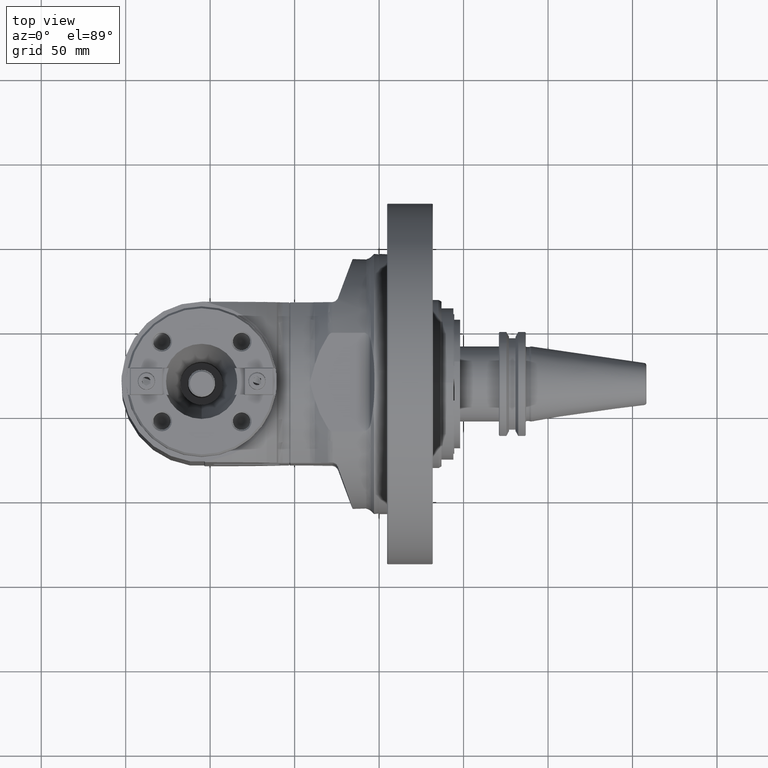
[diagram: clean part render]
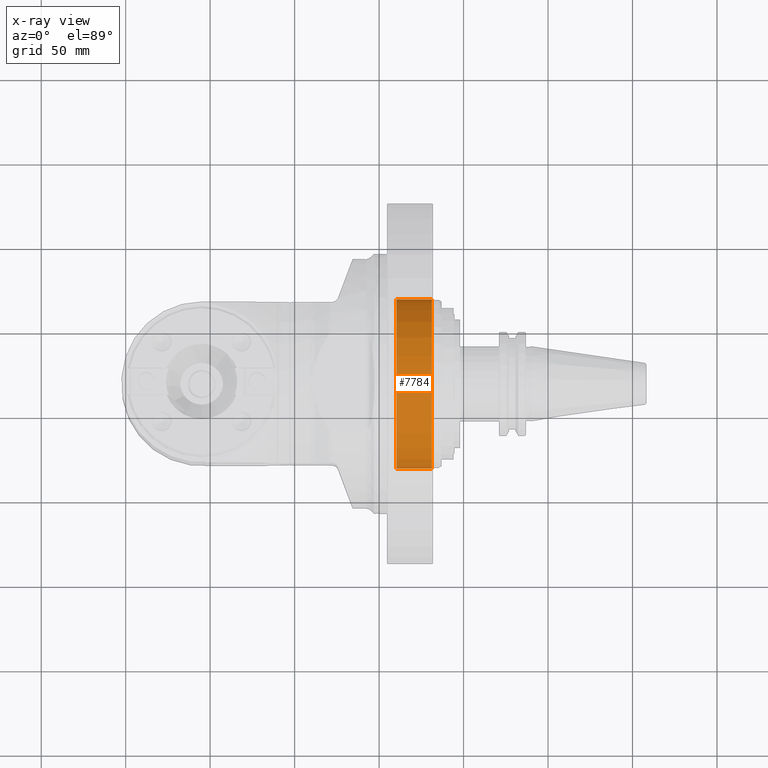
[diagram: x-ray — body ghosted, one internal face saturated and labeled with its STEP entity id]
A machine part, top view, then the same camera in x-ray: the body is ghosted and one INTERNAL B-rep face — a face not visible from any outside direction — is saturated and labeled: STEP entity #7784.
In plain terms, the highlighted cylindrical surface (bore or boss wall) has radius 50 mm, axis along (1, -0, 0).
Its self-contained STEP definition (entity closure, byte-faithful):
#383=CYLINDRICAL_SURFACE('',#8751,50.);
#789=CIRCLE('',#8749,50.);
#790=CIRCLE('',#8750,50.);
#791=CIRCLE('',#8752,50.);
#792=CIRCLE('',#8753,50.);
#1364=FACE_OUTER_BOUND('',#1891,.T.);
#1891=EDGE_LOOP('',(#7111,#7112,#7113,#7114,#7115,#7116));
#2496=LINE('',#14409,#2995);
#2995=VECTOR('',#11045,50.);
#3713=VERTEX_POINT('',#14402);
#3714=VERTEX_POINT('',#14403);
#3715=VERTEX_POINT('',#14408);
#3716=VERTEX_POINT('',#14410);
#4845=EDGE_CURVE('',#3713,#3714,#789,.T.);
#4847=EDGE_CURVE('',#3714,#3713,#790,.T.);
#4848=EDGE_CURVE('',#3713,#3715,#2496,.T.);
#4849=EDGE_CURVE('',#3716,#3715,#791,.T.);
#4850=EDGE_CURVE('',#3715,#3716,#792,.T.);
#7111=ORIENTED_EDGE('',*,*,#4845,.F.);
#7112=ORIENTED_EDGE('',*,*,#4848,.T.);
#7113=ORIENTED_EDGE('',*,*,#4849,.F.);
#7114=ORIENTED_EDGE('',*,*,#4850,.F.);
#7115=ORIENTED_EDGE('',*,*,#4848,.F.);
#7116=ORIENTED_EDGE('',*,*,#4847,.F.);
#7784=ADVANCED_FACE('',(#1364),#383,.F.);
#8749=AXIS2_PLACEMENT_3D('',#14404,#11038,#11039);
#8750=AXIS2_PLACEMENT_3D('',#14406,#11041,#11042);
#8751=AXIS2_PLACEMENT_3D('',#14407,#11043,#11044);
#8752=AXIS2_PLACEMENT_3D('',#14411,#11046,#11047);
#8753=AXIS2_PLACEMENT_3D('',#14412,#11048,#11049);
#11038=DIRECTION('center_axis',(-1.,0.,0.));
#11039=DIRECTION('ref_axis',(0.,0.,1.));
#11041=DIRECTION('center_axis',(-1.,0.,0.));
#11042=DIRECTION('ref_axis',(0.,0.,1.));
#11043=DIRECTION('center_axis',(-1.,0.,0.));
#11044=DIRECTION('ref_axis',(0.,0.,1.));
#11045=DIRECTION('',(-1.,0.,0.));
#11046=DIRECTION('center_axis',(1.,0.,0.));
#11047=DIRECTION('ref_axis',(0.,0.,1.));
#11048=DIRECTION('center_axis',(1.,0.,0.));
#11049=DIRECTION('ref_axis',(0.,0.,1.));
#14402=CARTESIAN_POINT('',(30.4999722177292,1.224646799147E-14,-50.));
#14403=CARTESIAN_POINT('',(30.4999722177289,5.59646419353263E-13,49.9999999999997));
#14404=CARTESIAN_POINT('Origin',(30.4999722177292,0.,0.));
#14406=CARTESIAN_POINT('Origin',(30.4999722177292,0.,0.));
#14407=CARTESIAN_POINT('Origin',(31.,0.,0.));
#14408=CARTESIAN_POINT('',(9.5000277822748,-6.12323399573677E-15,-50.));
#14409=CARTESIAN_POINT('',(31.,-6.12323399573677E-15,-50.));
#14410=CARTESIAN_POINT('',(9.5000277822748,0.,50.));
#14411=CARTESIAN_POINT('Origin',(9.5000277822748,0.,0.));
#14412=CARTESIAN_POINT('Origin',(9.5000277822748,0.,0.));